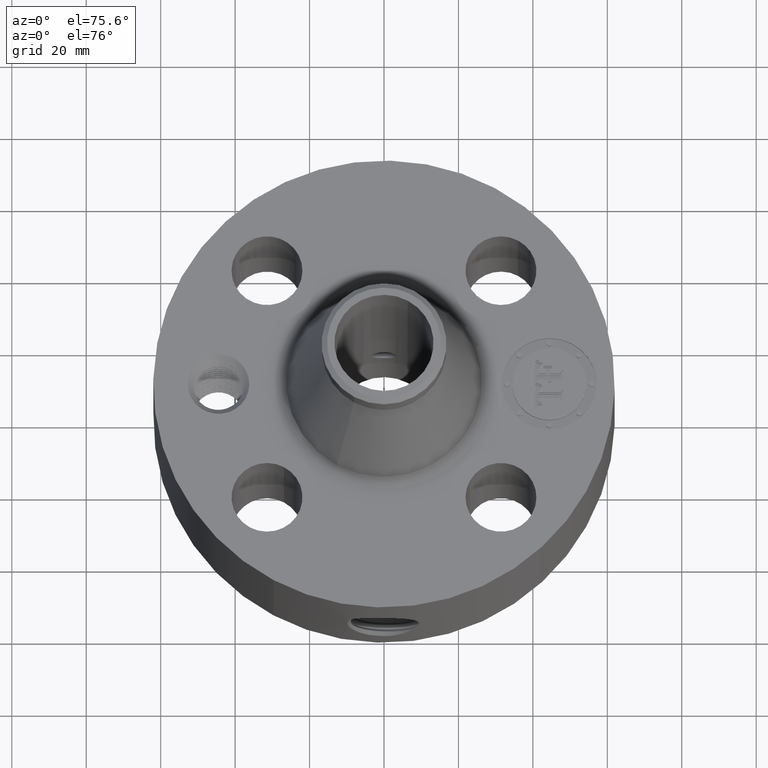
[diagram: clean part render]
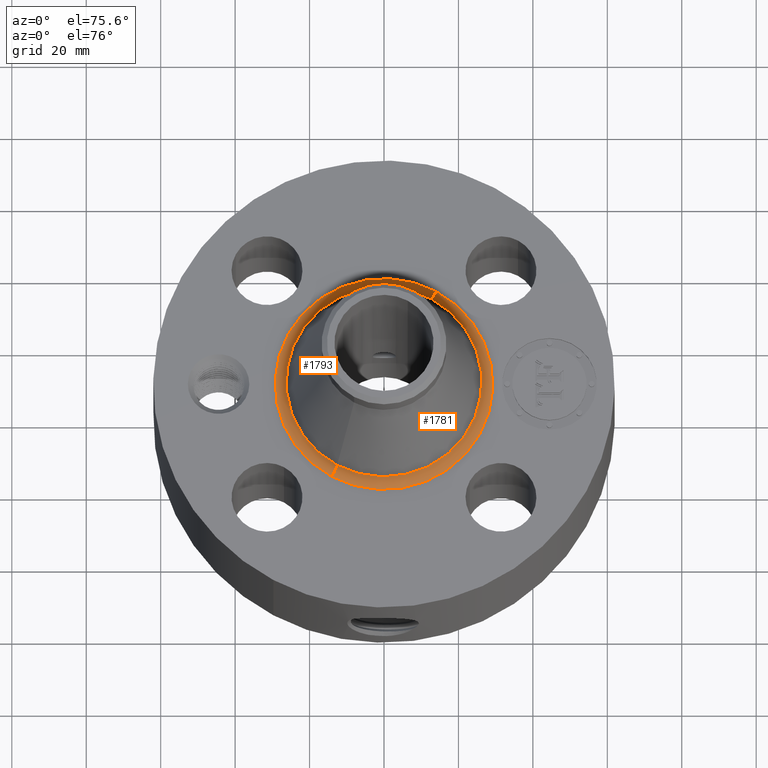
[diagram: same view with one multi-face feature highlighted, each face labeled with its STEP entity id]
A machine part, auxiliary view. The highlighted faces form ONE feature: a constant-radius fillet chain: 2 tangent blend faces with common blend radius 3.048 mm. The faces share edges in the B-rep.
Their STEP definitions:
[1] entity #1781 (Torus):
#502=AXIS2_PLACEMENT_3D('Circle Axis2P3D',#500,#501,$) ;
#1754=AXIS2_PLACEMENT_3D('Torus Axis2P3D',#1751,#1752,#1753) ;
#1758=AXIS2_PLACEMENT_3D('Circle Axis2P3D',#1756,#1757,$) ;
#1765=AXIS2_PLACEMENT_3D('Circle Axis2P3D',#1763,#1764,$) ;
#1772=AXIS2_PLACEMENT_3D('Circle Axis2P3D',#1770,#1771,$) ;
#495=CARTESIAN_POINT('Vertex',(-0.552161062108,-1.0107240446,1.75000000001)) ;
#497=CARTESIAN_POINT('Vertex',(0.552161062108,1.0107240446,1.75000000001)) ;
#500=CARTESIAN_POINT('Axis2P3D Location',(0.,0.,1.75000000001)) ;
#1751=CARTESIAN_POINT('Axis2P3D Location',(0.,0.,1.87000000001)) ;
#1756=CARTESIAN_POINT('Axis2P3D Location',(0.552161062108,1.0107240446,1.87000000001)) ;
#1760=CARTESIAN_POINT('Vertex',(0.496647878182,0.909107843027,1.83849707969)) ;
#1763=CARTESIAN_POINT('Axis2P3D Location',(0.,0.,1.83849707969)) ;
#1767=CARTESIAN_POINT('Vertex',(-0.496647878182,-0.909107843027,1.83849707969)) ;
#1770=CARTESIAN_POINT('Axis2P3D Location',(-0.552161062108,-1.0107240446,1.87000000001)) ;
#501=DIRECTION('Axis2P3D Direction',(0.,0.,-0.0393700787402)) ;
#1752=DIRECTION('Axis2P3D Direction',(0.,0.,-0.0393700787402)) ;
#1753=DIRECTION('Axis2P3D XDirection',(-0.0188750212049,-0.0345504945626,0.)) ;
#1757=DIRECTION('Axis2P3D Direction',(-0.0345504945626,0.0188750212049,0.)) ;
#1764=DIRECTION('Axis2P3D Direction',(0.,0.,-0.0393700787402)) ;
#1771=DIRECTION('Axis2P3D Direction',(0.0345504945626,-0.0188750212049,0.)) ;
#1776=ORIENTED_EDGE('',*,*,#504,.F.) ;
#1777=ORIENTED_EDGE('',*,*,#1762,.T.) ;
#1778=ORIENTED_EDGE('',*,*,#1769,.T.) ;
#1779=ORIENTED_EDGE('',*,*,#1774,.F.) ;
#1781=ADVANCED_FACE('PartBody',(#1780),#1755,.F.) ;
#503=CIRCLE('generated circle',#502,1.15171391102) ;
#1759=CIRCLE('generated circle',#1758,0.12) ;
#1766=CIRCLE('generated circle',#1765,1.03592286641) ;
#1773=CIRCLE('generated circle',#1772,0.12) ;
#1755=TOROIDAL_SURFACE('homeo Torus',#1754,1.15171391102,0.12) ;
#504=EDGE_CURVE('',#498,#496,#503,.T.) ;
#1762=EDGE_CURVE('',#498,#1761,#1759,.T.) ;
#1769=EDGE_CURVE('',#1761,#1768,#1766,.T.) ;
#1774=EDGE_CURVE('',#496,#1768,#1773,.T.) ;
#1775=EDGE_LOOP('',(#1776,#1777,#1778,#1779)) ;
#1780=FACE_OUTER_BOUND('',#1775,.T.) ;
#496=VERTEX_POINT('',#495) ;
#498=VERTEX_POINT('',#497) ;
#1761=VERTEX_POINT('',#1760) ;
#1768=VERTEX_POINT('',#1767) ;
[2] entity #1793 (Torus):
#493=AXIS2_PLACEMENT_3D('Circle Axis2P3D',#491,#492,$) ;
#1754=AXIS2_PLACEMENT_3D('Torus Axis2P3D',#1751,#1752,#1753) ;
#1758=AXIS2_PLACEMENT_3D('Circle Axis2P3D',#1756,#1757,$) ;
#1772=AXIS2_PLACEMENT_3D('Circle Axis2P3D',#1770,#1771,$) ;
#1784=AXIS2_PLACEMENT_3D('Circle Axis2P3D',#1782,#1783,$) ;
#491=CARTESIAN_POINT('Axis2P3D Location',(0.,0.,1.75000000001)) ;
#495=CARTESIAN_POINT('Vertex',(-0.552161062108,-1.0107240446,1.75000000001)) ;
#497=CARTESIAN_POINT('Vertex',(0.552161062108,1.0107240446,1.75000000001)) ;
#1751=CARTESIAN_POINT('Axis2P3D Location',(0.,0.,1.87000000001)) ;
#1756=CARTESIAN_POINT('Axis2P3D Location',(0.552161062108,1.0107240446,1.87000000001)) ;
#1760=CARTESIAN_POINT('Vertex',(0.496647878182,0.909107843027,1.83849707969)) ;
#1767=CARTESIAN_POINT('Vertex',(-0.496647878182,-0.909107843027,1.83849707969)) ;
#1770=CARTESIAN_POINT('Axis2P3D Location',(-0.552161062108,-1.0107240446,1.87000000001)) ;
#1782=CARTESIAN_POINT('Axis2P3D Location',(0.,0.,1.83849707969)) ;
#492=DIRECTION('Axis2P3D Direction',(0.,0.,-0.0393700787402)) ;
#1752=DIRECTION('Axis2P3D Direction',(0.,0.,-0.0393700787402)) ;
#1753=DIRECTION('Axis2P3D XDirection',(-0.0188750212049,-0.0345504945626,0.)) ;
#1757=DIRECTION('Axis2P3D Direction',(-0.0345504945626,0.0188750212049,0.)) ;
#1771=DIRECTION('Axis2P3D Direction',(0.0345504945626,-0.0188750212049,0.)) ;
#1783=DIRECTION('Axis2P3D Direction',(0.,0.,-0.0393700787402)) ;
#1788=ORIENTED_EDGE('',*,*,#499,.F.) ;
#1789=ORIENTED_EDGE('',*,*,#1774,.T.) ;
#1790=ORIENTED_EDGE('',*,*,#1786,.T.) ;
#1791=ORIENTED_EDGE('',*,*,#1762,.F.) ;
#1793=ADVANCED_FACE('PartBody',(#1792),#1755,.F.) ;
#494=CIRCLE('generated circle',#493,1.15171391102) ;
#1759=CIRCLE('generated circle',#1758,0.12) ;
#1773=CIRCLE('generated circle',#1772,0.12) ;
#1785=CIRCLE('generated circle',#1784,1.03592286641) ;
#1755=TOROIDAL_SURFACE('homeo Torus',#1754,1.15171391102,0.12) ;
#499=EDGE_CURVE('',#496,#498,#494,.T.) ;
#1762=EDGE_CURVE('',#498,#1761,#1759,.T.) ;
#1774=EDGE_CURVE('',#496,#1768,#1773,.T.) ;
#1786=EDGE_CURVE('',#1768,#1761,#1785,.T.) ;
#1787=EDGE_LOOP('',(#1788,#1789,#1790,#1791)) ;
#1792=FACE_OUTER_BOUND('',#1787,.T.) ;
#496=VERTEX_POINT('',#495) ;
#498=VERTEX_POINT('',#497) ;
#1761=VERTEX_POINT('',#1760) ;
#1768=VERTEX_POINT('',#1767) ;